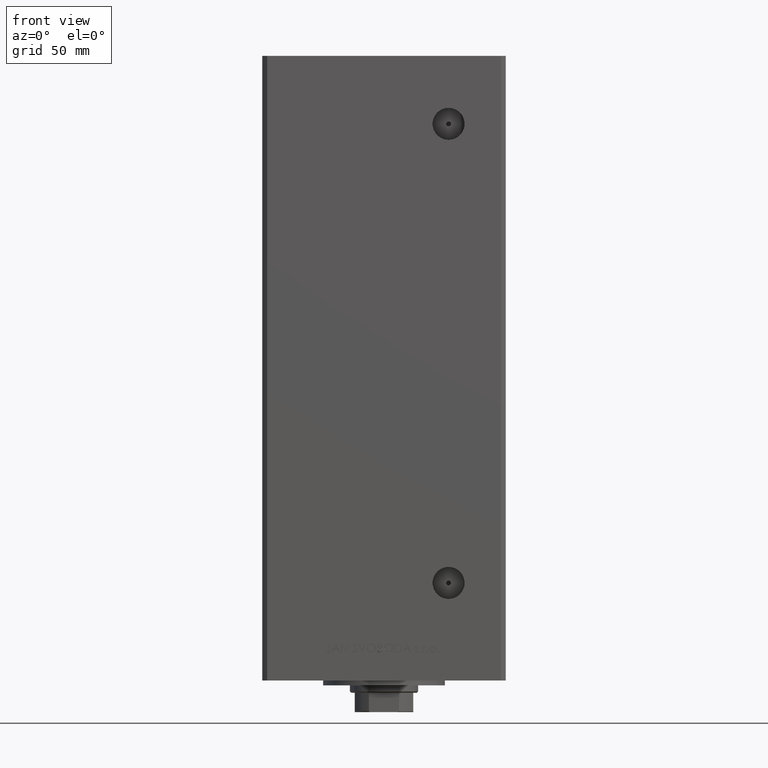
[diagram: clean part render]
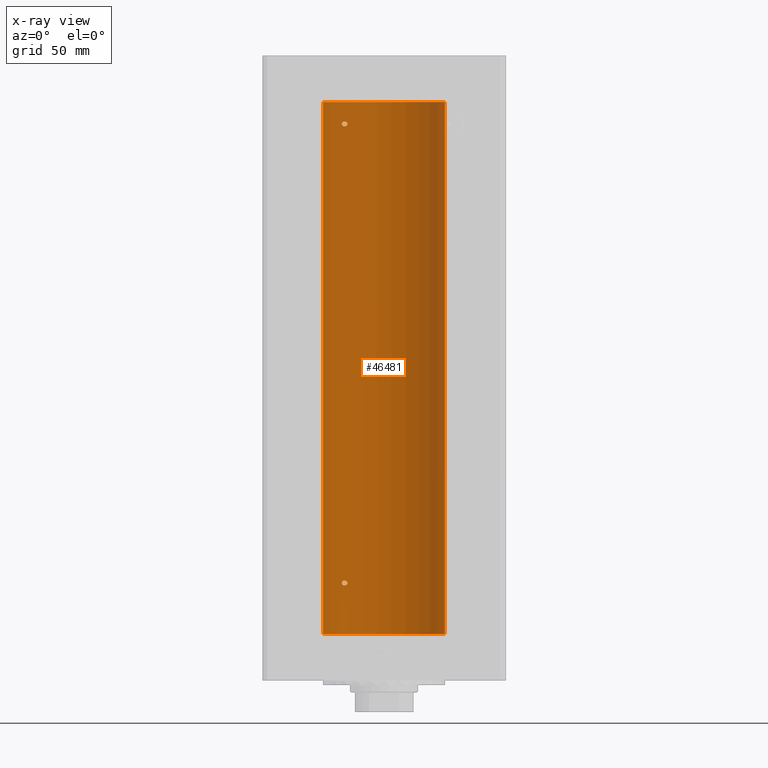
[diagram: x-ray — body ghosted, one internal face saturated and labeled with its STEP entity id]
A machine part, front view, then the same camera in x-ray: the body is ghosted and one INTERNAL B-rep face — a face not visible from any outside direction — is saturated and labeled: STEP entity #46481.
In plain terms, the highlighted cylindrical surface (partial cylindrical patch) has radius 25 mm, axis along (-0, -0, -1).
Its self-contained STEP definition (entity closure, byte-faithful):
#83 = CARTESIAN_POINT ( 'NONE',  ( -17.34935157289806185, 17.99999999999981526, 209.5000000000001137 ) ) ;
#678 = VECTOR ( 'NONE', #38406, 1000.000000000000000 ) ;
#1106 = CARTESIAN_POINT ( 'NONE',  ( 25.00000000000000000, 3.061616997868383043E-15, 0.000000000000000000 ) ) ;
#1564 = VERTEX_POINT ( 'NONE', #43090 ) ;
#2027 = CARTESIAN_POINT ( 'NONE',  ( -16.99843849356152248, 18.33190197607051886, 21.74683351457564839 ) ) ;
#2122 = CARTESIAN_POINT ( 'NONE',  ( -14.99999999999999112, 20.00000000000000711, 209.5000000000000000 ) ) ;
#2516 = CARTESIAN_POINT ( 'NONE',  ( -17.30163983552693452, 18.04615713653364750, 21.33600747272777909 ) ) ;
#2751 = CARTESIAN_POINT ( 'NONE',  ( -17.30269557861145202, 18.04515136187498570, 20.66604208175573376 ) ) ;
#3008 = CARTESIAN_POINT ( 'NONE',  ( -16.83415218046515349, 18.48332662461723785, 20.13431726628115115 ) ) ;
#3263 = CARTESIAN_POINT ( 'NONE',  ( -15.23538646979301170, 19.82157806413531631, 20.41199989528276149 ) ) ;
#3281 = VERTEX_POINT ( 'NONE', #24961 ) ;
#3991 = EDGE_LOOP ( 'NONE', ( #10821, #13553 ) ) ;
#5352 = FACE_OUTER_BOUND ( 'NONE', #12083, .T. ) ;
#5426 = CARTESIAN_POINT ( 'NONE',  ( -15.34624284195505162, 19.73614442075940190, 210.1876185318512853 ) ) ;
#5513 = VERTEX_POINT ( 'NONE', #42670 ) ;
#5592 = CYLINDRICAL_SURFACE ( 'NONE', #41297, 25.00000000000000000 ) ;
#6306 = CARTESIAN_POINT ( 'NONE',  ( -17.34935157289810093, 17.99999999999978328, 21.00000000000008882 ) ) ;
#6796 = CARTESIAN_POINT ( 'NONE',  ( -15.10490010356607904, 19.92096840819818127, 20.60376667132250716 ) ) ;
#7006 = CARTESIAN_POINT ( 'NONE',  ( -15.00000000000018119, 20.00000000000001421, 209.4159474586024032 ) ) ;
#7308 = CARTESIAN_POINT ( 'NONE',  ( -15.34666241858321634, 19.73581294411414078, 20.31212246053760495 ) ) ;
#7424 = CARTESIAN_POINT ( 'NONE',  ( -17.34935157289746854, 18.00000000000001421, 209.6709736906063029 ) ) ;
#9612 = CARTESIAN_POINT ( 'NONE',  ( -17.19010376497224968, 18.15221652163108601, 21.53567012356800703 ) ) ;
#9688 = VERTEX_POINT ( 'NONE', #39935 ) ;
#9963 = CARTESIAN_POINT ( 'NONE',  ( -17.05007833789892047, 18.28384926940287869, 210.2013739990121337 ) ) ;
#10210 = CARTESIAN_POINT ( 'NONE',  ( -15.01476641895662567, 19.98894406010707314, 209.6687945634013488 ) ) ;
#10290 = CARTESIAN_POINT ( 'NONE',  ( -17.34935157289810093, 17.99999999999978328, 21.00000000000008882 ) ) ;
#10546 = CARTESIAN_POINT ( 'NONE',  ( -17.15234217094406333, 18.18812579706696653, 208.8965730437749073 ) ) ;
#10799 = CARTESIAN_POINT ( 'NONE',  ( -16.46844752485324648, 18.81003400474354947, 208.5115443190389612 ) ) ;
#10821 = ORIENTED_EDGE ( 'NONE', *, *, #19638, .F. ) ;
#10848 = CARTESIAN_POINT ( 'NONE',  ( -16.08757264251635277, 19.13682698743030386, 20.00344276584819525 ) ) ;
#11761 = EDGE_CURVE ( 'NONE', #3281, #40630, #31757, .T. ) ;
#11920 = ORIENTED_EDGE ( 'NONE', *, *, #48162, .F. ) ;
#12083 = EDGE_LOOP ( 'NONE', ( #22525, #20775, #13245, #26527 ) ) ;
#12430 = CARTESIAN_POINT ( 'NONE',  ( -15.00000000000021316, 19.99999999999998934, 21.08403880362416061 ) ) ;
#13245 = ORIENTED_EDGE ( 'NONE', *, *, #42491, .T. ) ;
#13526 = DIRECTION ( 'NONE',  ( -0.000000000000000000, -0.000000000000000000, -1.000000000000000000 ) ) ;
#13553 = ORIENTED_EDGE ( 'NONE', *, *, #28544, .F. ) ;
#14091 = CARTESIAN_POINT ( 'NONE',  ( -15.06722189748648866, 19.94943357555938590, 209.1759803248789069 ) ) ;
#14154 = CARTESIAN_POINT ( 'NONE',  ( -16.08745393861406825, 19.13692152169247507, 21.99650150998692766 ) ) ;
#14407 = CARTESIAN_POINT ( 'NONE',  ( -15.01476641895664876, 19.98894406010705183, 21.16879456340133459 ) ) ;
#14846 = CARTESIAN_POINT ( 'NONE',  ( -15.34666241858318259, 19.73581294411415854, 208.8121224605376369 ) ) ;
#14897 = CARTESIAN_POINT ( 'NONE',  ( -16.46844752485328911, 18.81003400474351039, 20.01154431903891862 ) ) ;
#15156 = CARTESIAN_POINT ( 'NONE',  ( -15.58164749401203686, 19.55082150006403907, 20.15667807268518885 ) ) ;
#16036 = CIRCLE ( 'NONE', #46785, 25.00000000000000000 ) ;
#16577 = DIRECTION ( 'NONE',  ( -0.000000000000000000, 0.000000000000000000, 1.000000000000000000 ) ) ;
#17060 = CARTESIAN_POINT ( 'NONE',  ( -16.72476285461317502, 18.58415905903083498, 210.4449447607957211 ) ) ;
#17298 = AXIS2_PLACEMENT_3D ( 'NONE', #38392, #42190, #45488 ) ;
#17310 = CARTESIAN_POINT ( 'NONE',  ( -15.95796937689560480, 19.24499537862567422, 210.4757730996522298 ) ) ;
#17883 = CARTESIAN_POINT ( 'NONE',  ( -16.08757264251632080, 19.13682698743034649, 208.5034427658482059 ) ) ;
#18708 = CARTESIAN_POINT ( 'NONE',  ( -15.00000000000002842, 19.99999999999998224, 20.99999999999998934 ) ) ;
#19086 = CARTESIAN_POINT ( 'NONE',  ( -17.30163983552688833, 18.04615713653367948, 209.8360074727278572 ) ) ;
#19164 = LINE ( 'NONE', #38152, #678 ) ;
#19220 = CARTESIAN_POINT ( 'NONE',  ( -15.06722189748651175, 19.94943357555936458, 20.67598032487887849 ) ) ;
#19638 = EDGE_CURVE ( 'NONE', #38082, #9688, #46318, .T. ) ;
#20130 = DIRECTION ( 'NONE',  ( 1.000000000000000000, 0.000000000000000000, 0.000000000000000000 ) ) ;
#20555 = CARTESIAN_POINT ( 'NONE',  ( 0.000000000000000000, 0.000000000000000000, 218.5000000000000000 ) ) ;
#20775 = ORIENTED_EDGE ( 'NONE', *, *, #25050, .T. ) ;
#20869 = CARTESIAN_POINT ( 'NONE',  ( -15.58230678163759642, 19.55030131031898577, 210.3437394867029582 ) ) ;
#21258 = CARTESIAN_POINT ( 'NONE',  ( -16.46913072925707056, 18.81168496547888580, 22.00577755881141329 ) ) ;
#21695 = CARTESIAN_POINT ( 'NONE',  ( -17.34935157289747210, 18.00000000000002132, 209.3289983604257998 ) ) ;
#21993 = CARTESIAN_POINT ( 'NONE',  ( -17.34935157289810093, 17.99999999999978328, 21.00000000000008882 ) ) ;
#22197 = CARTESIAN_POINT ( 'NONE',  ( -16.71492528194901794, 18.59135325782701642, 208.5801415583420351 ) ) ;
#22262 = CARTESIAN_POINT ( 'NONE',  ( -17.14593038898733113, 18.19399314418732061, 21.59594488319649130 ) ) ;
#22457 = CARTESIAN_POINT ( 'NONE',  ( -14.99999999999999112, 20.00000000000000711, 209.5000000000000000 ) ) ;
#22509 = CARTESIAN_POINT ( 'NONE',  ( -16.34293146994555812, 18.91921593628406129, 19.99734259067261277 ) ) ;
#22525 = ORIENTED_EDGE ( 'NONE', *, *, #35972, .F. ) ;
#22709 = CARTESIAN_POINT ( 'NONE',  ( -17.05249165747618534, 18.28208333366438509, 208.7922192200363725 ) ) ;
#22793 = CARTESIAN_POINT ( 'NONE',  ( -17.34935157289806185, 17.99999999999981526, 209.5000000000001137 ) ) ;
#24767 = VERTEX_POINT ( 'NONE', #33208 ) ;
#24803 = ORIENTED_EDGE ( 'NONE', *, *, #11761, .F. ) ;
#24961 = CARTESIAN_POINT ( 'NONE',  ( -15.00000000000002842, 19.99999999999998224, 20.99999999999998934 ) ) ;
#25050 = EDGE_CURVE ( 'NONE', #1564, #5513, #28603, .T. ) ;
#25403 = CARTESIAN_POINT ( 'NONE',  ( -17.14593038898727428, 18.19399314418736324, 210.0959448831964664 ) ) ;
#25802 = CARTESIAN_POINT ( 'NONE',  ( -15.06763582406801483, 19.94912143246361325, 21.32506993877174395 ) ) ;
#25983 = CARTESIAN_POINT ( 'NONE',  ( -16.34293146994552259, 18.91921593628409681, 208.4973425906725879 ) ) ;
#26527 = ORIENTED_EDGE ( 'NONE', *, *, #39021, .F. ) ;
#28382 = FACE_BOUND ( 'NONE', #3991, .T. ) ;
#28544 = EDGE_CURVE ( 'NONE', #9688, #38082, #31819, .T. ) ;
#28603 = CIRCLE ( 'NONE', #17298, 25.00000000000000000 ) ;
#28626 = DIRECTION ( 'NONE',  ( -0.000000000000000000, -0.000000000000000000, -1.000000000000000000 ) ) ;
#28953 = CARTESIAN_POINT ( 'NONE',  ( -16.99843849356149050, 18.33190197607055794, 210.2468335145757123 ) ) ;
#29281 = CARTESIAN_POINT ( 'NONE',  ( -16.83415218046510731, 18.48332662461726983, 208.6343172662811583 ) ) ;
#29596 = CARTESIAN_POINT ( 'NONE',  ( -15.70535969280557254, 19.45169171760800708, 21.89896077211249192 ) ) ;
#29790 = CARTESIAN_POINT ( 'NONE',  ( -17.30269557861141294, 18.04515136187502478, 209.1660420817557053 ) ) ;
#29850 = CARTESIAN_POINT ( 'NONE',  ( -15.58230678163764260, 19.55030131031895380, 21.84373948670293331 ) ) ;
#30090 = CARTESIAN_POINT ( 'NONE',  ( -17.05249165747622442, 18.28208333366434601, 20.29221922003641509 ) ) ;
#30602 = CARTESIAN_POINT ( 'NONE',  ( -15.95808436639362782, 19.24489366819297942, 20.02426087884952821 ) ) ;
#31757 = B_SPLINE_CURVE_WITH_KNOTS ( 'NONE', 3,
 ( #47879, #12430, #14407, #25802, #49116, #49371, #32916, #29850, #29596, #41010, #14154, #21258, #33911, #2027, #37450, #22262, #9612, #2516, #41259, #6306 ),
 .UNSPECIFIED., .F., .F.,
 ( 4, 2, 2, 2, 2, 2, 2, 2, 2, 4 ),
 ( 0.004032696862986568168, 0.004284699222246932983, 0.004536701581507298665, 0.005040706300028030031, 0.005544711018548761396, 0.006048715737069493628, 0.007056725174110963297, 0.007308727533371326378, 0.007560729892631690326, 0.008064734611152429497 ),
 .UNSPECIFIED. ) ;
#31819 = B_SPLINE_CURVE_WITH_KNOTS ( 'NONE', 3,
 ( #2122, #33508, #10210, #33012, #40115, #48475, #5426, #20869, #32517, #17310, #32765, #44671, #17060, #28953, #9963, #25403, #49217, #19086, #7424, #83 ),
 .UNSPECIFIED., .F., .F.,
 ( 4, 2, 2, 2, 2, 2, 2, 2, 2, 4 ),
 ( 0.004032696862986557759, 0.004284699222246954667, 0.004536701581507351574, 0.005040706300028082940, 0.005544711018548810835, 0.006048715737069539598, 0.007056725174110996257, 0.007308727533371349797, 0.007560729892631701601, 0.008064734611152412150 ),
 .UNSPECIFIED. ) ;
#32517 = CARTESIAN_POINT ( 'NONE',  ( -15.70535969280552280, 19.45169171760802485, 210.3989607721124173 ) ) ;
#32765 = CARTESIAN_POINT ( 'NONE',  ( -16.08745393861402917, 19.13692152169251059, 210.4965015099869277 ) ) ;
#32774 = LINE ( 'NONE', #48236, #47672 ) ;
#32916 = CARTESIAN_POINT ( 'NONE',  ( -15.34624284195510135, 19.73614442075936992, 21.68761853185130306 ) ) ;
#32933 = FACE_BOUND ( 'NONE', #36654, .T. ) ;
#33012 = CARTESIAN_POINT ( 'NONE',  ( -15.06763582406798818, 19.94912143246363811, 209.8250699387717475 ) ) ;
#33092 = CARTESIAN_POINT ( 'NONE',  ( -15.58164749401199956, 19.55082150006405328, 208.6566780726851391 ) ) ;
#33208 = CARTESIAN_POINT ( 'NONE',  ( -25.00000000000000000, 0.000000000000000000, 0.000000000000000000 ) ) ;
#33342 = CARTESIAN_POINT ( 'NONE',  ( -15.70664578139651546, 19.45064696206092947, 208.6005795994921925 ) ) ;
#33508 = CARTESIAN_POINT ( 'NONE',  ( -15.00000000000018474, 20.00000000000002487, 209.5840388036241109 ) ) ;
#33645 = CARTESIAN_POINT ( 'NONE',  ( -15.01482636753736166, 19.98889854010113254, 20.83120266100769769 ) ) ;
#33911 = CARTESIAN_POINT ( 'NONE',  ( -16.72476285461321766, 18.58415905903079945, 21.94494476079569978 ) ) ;
#34411 = CARTESIAN_POINT ( 'NONE',  ( -15.70664578139654566, 19.45064696206090105, 20.10057959949211082 ) ) ;
#35198 = B_SPLINE_CURVE_WITH_KNOTS ( 'NONE', 3,
 ( #21993, #49876, #2751, #37950, #30090, #3008, #45559, #14897, #22509, #10848, #30602, #34411, #15156, #7308, #3263, #6796, #19220, #33645, #49101, #18708 ),
 .UNSPECIFIED., .F., .F.,
 ( 4, 2, 2, 2, 2, 2, 2, 2, 2, 4 ),
 ( 2.011680962688586771E-16, 0.0005040871078734975291, 0.001008174215746794047, 0.001512261323620090565, 0.002016348431493386866, 0.002520435539366683384, 0.003024522647239979902, 0.003528609755113272951, 0.003780653309049920342, 0.004032696862986568168 ),
 .UNSPECIFIED. ) ;
#35972 = EDGE_CURVE ( 'NONE', #1564, #44748, #19164, .T. ) ;
#36654 = EDGE_LOOP ( 'NONE', ( #11920, #24803 ) ) ;
#37450 = CARTESIAN_POINT ( 'NONE',  ( -17.05007833789895955, 18.28384926940283606, 21.70137399901213371 ) ) ;
#37950 = CARTESIAN_POINT ( 'NONE',  ( -17.15234217094410596, 18.18812579706693100, 20.39657304377494640 ) ) ;
#38082 = VERTEX_POINT ( 'NONE', #22793 ) ;
#38152 = CARTESIAN_POINT ( 'NONE',  ( 25.00000000000000000, 3.061616997868383043E-15, 218.5000000000000000 ) ) ;
#38392 = CARTESIAN_POINT ( 'NONE',  ( 0.000000000000000000, 0.000000000000000000, 218.5000000000000000 ) ) ;
#38406 = DIRECTION ( 'NONE',  ( -0.000000000000000000, -0.000000000000000000, -1.000000000000000000 ) ) ;
#39021 = EDGE_CURVE ( 'NONE', #44748, #24767, #16036, .T. ) ;
#39935 = CARTESIAN_POINT ( 'NONE',  ( -14.99999999999999112, 20.00000000000000711, 209.5000000000000000 ) ) ;
#40115 = CARTESIAN_POINT ( 'NONE',  ( -15.10490800566735103, 19.92096305044241689, 209.8962931740442457 ) ) ;
#40630 = VERTEX_POINT ( 'NONE', #10290 ) ;
#40946 = CARTESIAN_POINT ( 'NONE',  ( -17.34935157289806185, 17.99999999999981526, 209.5000000000001137 ) ) ;
#41010 = CARTESIAN_POINT ( 'NONE',  ( -15.95796937689564565, 19.24499537862563869, 21.97577309965217651 ) ) ;
#41198 = CARTESIAN_POINT ( 'NONE',  ( -15.95808436639360117, 19.24489366819300784, 208.5242608788495886 ) ) ;
#41259 = CARTESIAN_POINT ( 'NONE',  ( -17.34935157289749696, 17.99999999999998224, 21.17097369060632417 ) ) ;
#41297 = AXIS2_PLACEMENT_3D ( 'NONE', #20555, #28626, #48398 ) ;
#41448 = CARTESIAN_POINT ( 'NONE',  ( -15.01482636753733146, 19.98889854010115741, 209.3312026610076941 ) ) ;
#42190 = DIRECTION ( 'NONE',  ( -0.000000000000000000, 0.000000000000000000, 1.000000000000000000 ) ) ;
#42491 = EDGE_CURVE ( 'NONE', #5513, #24767, #32774, .T. ) ;
#42670 = CARTESIAN_POINT ( 'NONE',  ( -25.00000000000000000, 0.000000000000000000, 218.5000000000000000 ) ) ;
#43090 = CARTESIAN_POINT ( 'NONE',  ( 25.00000000000000000, 3.061616997868383043E-15, 218.5000000000000000 ) ) ;
#43178 = CARTESIAN_POINT ( 'NONE',  ( 0.000000000000000000, 0.000000000000000000, 0.000000000000000000 ) ) ;
#44671 = CARTESIAN_POINT ( 'NONE',  ( -16.46913072925702792, 18.81168496547891777, 210.5057775588113884 ) ) ;
#44748 = VERTEX_POINT ( 'NONE', #1106 ) ;
#44751 = CARTESIAN_POINT ( 'NONE',  ( -15.10490010356605595, 19.92096840819819903, 209.1037666713224894 ) ) ;
#45488 = DIRECTION ( 'NONE',  ( 1.000000000000000000, 0.000000000000000000, 0.000000000000000000 ) ) ;
#45559 = CARTESIAN_POINT ( 'NONE',  ( -16.71492528194906768, 18.59135325782697734, 20.08014155834204217 ) ) ;
#46318 = B_SPLINE_CURVE_WITH_KNOTS ( 'NONE', 3,
 ( #40946, #21695, #29790, #10546, #22709, #29281, #22197, #10799, #25983, #17883, #41198, #33342, #33092, #14846, #48804, #44751, #14091, #41448, #7006, #22457 ),
 .UNSPECIFIED., .F., .F.,
 ( 4, 2, 2, 2, 2, 2, 2, 2, 2, 4 ),
 ( 2.254873622441466949E-16, 0.0005040871078735091300, 0.001008174215746792746, 0.001512261323620076470, 0.002016348431493359978, 0.002520435539366643485, 0.003024522647239927427, 0.003528609755113210501, 0.003780653309049884347, 0.004032696862986557759 ),
 .UNSPECIFIED. ) ;
#46481 = ADVANCED_FACE ( 'NONE', ( #5352, #32933, #28382 ), #5592, .F. ) ;
#46785 = AXIS2_PLACEMENT_3D ( 'NONE', #43178, #16577, #20130 ) ;
#47672 = VECTOR ( 'NONE', #13526, 1000.000000000000000 ) ;
#47879 = CARTESIAN_POINT ( 'NONE',  ( -15.00000000000002842, 19.99999999999998224, 20.99999999999998934 ) ) ;
#48162 = EDGE_CURVE ( 'NONE', #40630, #3281, #35198, .T. ) ;
#48236 = CARTESIAN_POINT ( 'NONE',  ( -25.00000000000000000, 0.000000000000000000, 218.5000000000000000 ) ) ;
#48398 = DIRECTION ( 'NONE',  ( -1.000000000000000000, 0.000000000000000000, 0.000000000000000000 ) ) ;
#48475 = CARTESIAN_POINT ( 'NONE',  ( -15.23594348686699185, 19.82115246225716021, 210.0887219326858144 ) ) ;
#48804 = CARTESIAN_POINT ( 'NONE',  ( -15.23538646979298505, 19.82157806413532697, 208.9119998952828041 ) ) ;
#49101 = CARTESIAN_POINT ( 'NONE',  ( -15.00000000000022027, 20.00000000000000355, 20.91594745860243165 ) ) ;
#49116 = CARTESIAN_POINT ( 'NONE',  ( -15.10490800566739011, 19.92096305044238491, 21.39629317404425279 ) ) ;
#49217 = CARTESIAN_POINT ( 'NONE',  ( -17.19010376497220705, 18.15221652163111088, 210.0356701235680248 ) ) ;
#49371 = CARTESIAN_POINT ( 'NONE',  ( -15.23594348686703448, 19.82115246225713179, 21.58872193268582151 ) ) ;
#49876 = CARTESIAN_POINT ( 'NONE',  ( -17.34935157289749696, 17.99999999999998579, 20.82899836042580688 ) ) ;